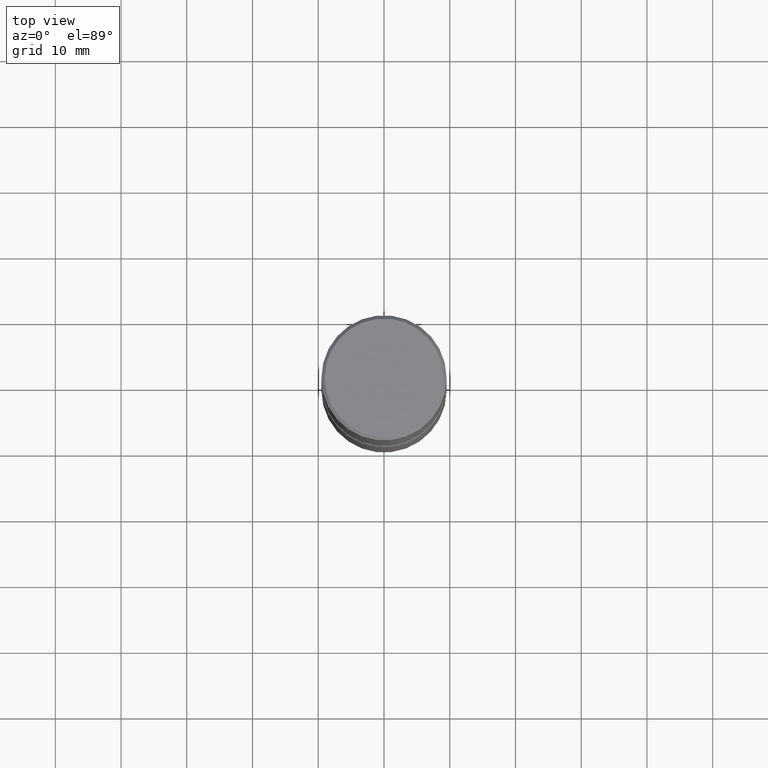
[diagram: clean part render]
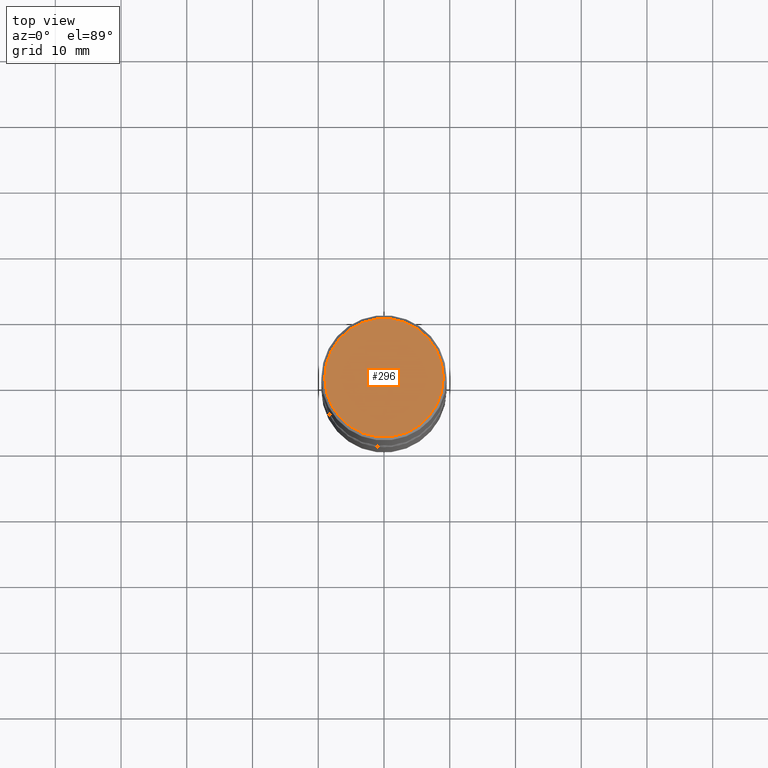
[diagram: same view with one face highlighted and labeled with its STEP entity id]
A machine part, top view. The second image highlights one B-rep face of the part: STEP entity #296.
In plain terms, the highlighted planar face has unit normal (0, -0, -1).
Its self-contained STEP definition (entity closure, byte-faithful):
#94 = VERTEX_POINT ( 'NONE', #290 ) ;
#130 = AXIS2_PLACEMENT_3D ( 'NONE', #453, #322, #230 ) ;
#164 = CIRCLE ( 'NONE', #130, 0.3549999999999999822 ) ;
#183 = DIRECTION ( 'NONE',  ( -2.445468806185136597E-29, 3.491481338843145583E-15, 1.000000000000000000 ) ) ;
#193 = AXIS2_PLACEMENT_3D ( 'NONE', #313, #183, #533 ) ;
#199 = PLANE ( 'NONE',  #378 ) ;
#200 = EDGE_LOOP ( 'NONE', ( #433, #447 ) ) ;
#210 = EDGE_CURVE ( 'NONE', #94, #215, #164, .T. ) ;
#215 = VERTEX_POINT ( 'NONE', #379 ) ;
#230 = DIRECTION ( 'NONE',  ( 1.000000000000000000, -6.982962677686265922E-15, 4.876231632511988183E-29 ) ) ;
#242 = CARTESIAN_POINT ( 'NONE',  ( 2.478951750578624209E-15, 0.3549999999999999822, -1.233073106554166000E-15 ) ) ;
#290 = CARTESIAN_POINT ( 'NONE',  ( 0.3549999999999999822, -2.538996582575041048E-15, 1.280553747031877983E-17 ) ) ;
#291 = DIRECTION ( 'NONE',  ( -1.000000000000000000, 6.982962677686265922E-15, -4.876176775795935793E-29 ) ) ;
#296 = ADVANCED_FACE ( 'NONE', ( #559 ), #199, .F. ) ;
#313 = CARTESIAN_POINT ( 'NONE',  ( -3.131554243005659264E-46, 4.471029511141341874E-32, 1.280553747030123384E-17 ) ) ;
#322 = DIRECTION ( 'NONE',  ( -2.445468806185136597E-29, 3.491481338843145583E-15, 1.000000000000000000 ) ) ;
#351 = EDGE_CURVE ( 'NONE', #215, #94, #450, .T. ) ;
#378 = AXIS2_PLACEMENT_3D ( 'NONE', #242, #472, #291 ) ;
#379 = CARTESIAN_POINT ( 'NONE',  ( -0.3549999999999999822, 2.513866563967055464E-15, 1.280553747028377567E-17 ) ) ;
#433 = ORIENTED_EDGE ( 'NONE', *, *, #351, .T. ) ;
#447 = ORIENTED_EDGE ( 'NONE', *, *, #210, .T. ) ;
#450 = CIRCLE ( 'NONE', #193, 0.3549999999999999822 ) ;
#453 = CARTESIAN_POINT ( 'NONE',  ( -3.131554243005659264E-46, 4.471029511141341874E-32, 1.280553747030123384E-17 ) ) ;
#472 = DIRECTION ( 'NONE',  ( 2.438088387897960049E-29, -3.491481338843145188E-15, -1.000000000000000000 ) ) ;
#533 = DIRECTION ( 'NONE',  ( 1.000000000000000000, -6.982962677686265922E-15, 4.876231632511988183E-29 ) ) ;
#559 = FACE_OUTER_BOUND ( 'NONE', #200, .T. ) ;